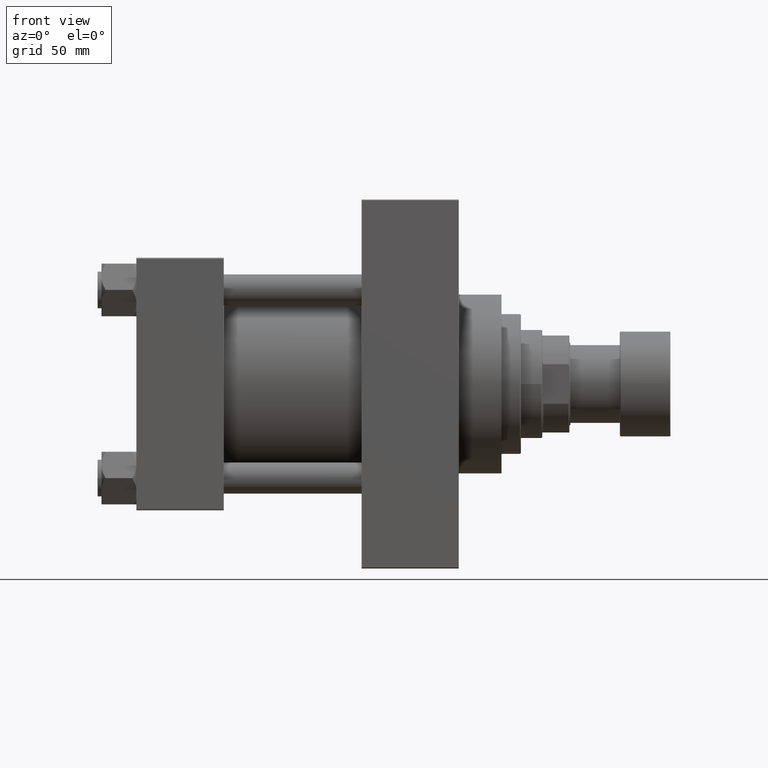
[diagram: clean part render]
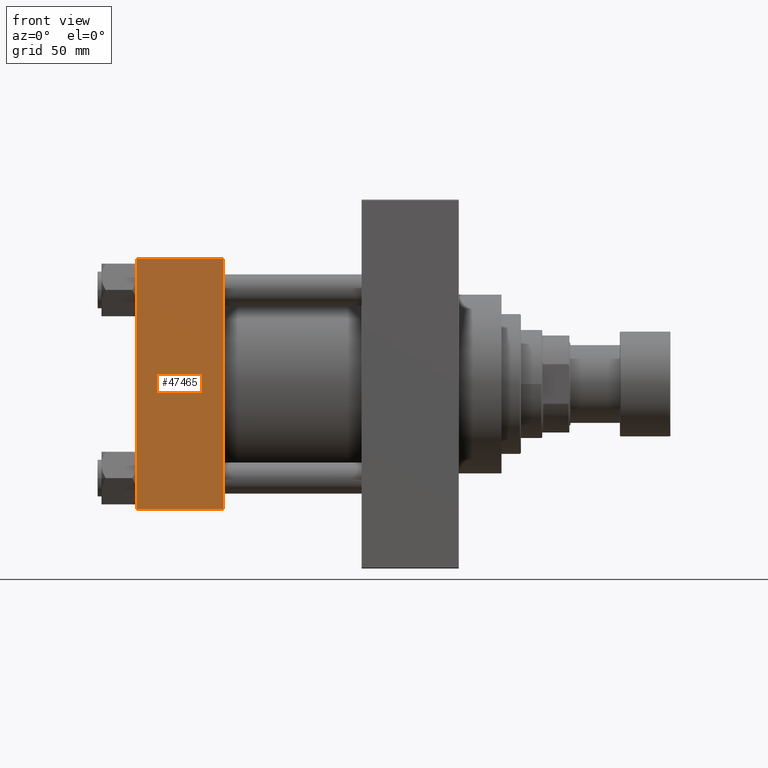
[diagram: same view with one face highlighted and labeled with its STEP entity id]
A machine part, front view. The second image highlights one B-rep face of the part: STEP entity #47465.
In plain terms, the highlighted planar face has unit normal (0, 1, 0).
Its self-contained STEP definition (entity closure, byte-faithful):
#1979 = EDGE_CURVE ( 'NONE', #15311, #25437, #34301, .T. ) ;
#5972 = VERTEX_POINT ( 'NONE', #15724 ) ;
#6564 = DIRECTION ( 'NONE',  ( -1.000000000000000000, 0.000000000000000000, 0.000000000000000000 ) ) ;
#7056 = DIRECTION ( 'NONE',  ( 1.000000000000000000, 0.000000000000000000, 0.000000000000000000 ) ) ;
#7697 = DIRECTION ( 'NONE',  ( 0.000000000000000000, 0.000000000000000000, -1.000000000000000000 ) ) ;
#7709 = CARTESIAN_POINT ( 'NONE',  ( 0.000000000000000000, -65.00000000000000000, 64.50000000000000000 ) ) ;
#7940 = DIRECTION ( 'NONE',  ( -0.000000000000000000, 1.000000000000000000, 0.000000000000000000 ) ) ;
#8434 = CARTESIAN_POINT ( 'NONE',  ( 45.00000000000000000, -65.00000000000000000, 65.00000000000000000 ) ) ;
#8825 = VECTOR ( 'NONE', #6564, 1000.000000000000000 ) ;
#9496 = ORIENTED_EDGE ( 'NONE', *, *, #34853, .F. ) ;
#13543 = VERTEX_POINT ( 'NONE', #42038 ) ;
#14670 = LINE ( 'NONE', #26394, #36532 ) ;
#14983 = DIRECTION ( 'NONE',  ( 0.000000000000000000, 0.000000000000000000, -1.000000000000000000 ) ) ;
#15311 = VERTEX_POINT ( 'NONE', #40466 ) ;
#15724 = CARTESIAN_POINT ( 'NONE',  ( 45.00000000000000000, -65.00000000000000000, -64.49999999999991473 ) ) ;
#16053 = LINE ( 'NONE', #8434, #42961 ) ;
#18350 = FACE_OUTER_BOUND ( 'NONE', #27128, .T. ) ;
#18610 = CARTESIAN_POINT ( 'NONE',  ( 45.00000000000000000, -65.00000000000000000, 65.00000000000000000 ) ) ;
#18751 = CARTESIAN_POINT ( 'NONE',  ( 45.00000000000000000, -65.00000000000000000, 64.50000000000000000 ) ) ;
#25437 = VERTEX_POINT ( 'NONE', #7709 ) ;
#26394 = CARTESIAN_POINT ( 'NONE',  ( 45.00000000000000000, -65.00000000000000000, -64.49999999999991473 ) ) ;
#26966 = LINE ( 'NONE', #38660, #50376 ) ;
#27128 = EDGE_LOOP ( 'NONE', ( #39581, #39459, #9496, #32031 ) ) ;
#32031 = ORIENTED_EDGE ( 'NONE', *, *, #1979, .T. ) ;
#34164 = PLANE ( 'NONE',  #45056 ) ;
#34301 = LINE ( 'NONE', #18751, #8825 ) ;
#34853 = EDGE_CURVE ( 'NONE', #15311, #5972, #16053, .T. ) ;
#36396 = EDGE_CURVE ( 'NONE', #25437, #13543, #26966, .T. ) ;
#36532 = VECTOR ( 'NONE', #7056, 1000.000000000000000 ) ;
#36738 = EDGE_CURVE ( 'NONE', #13543, #5972, #14670, .T. ) ;
#38660 = CARTESIAN_POINT ( 'NONE',  ( 0.000000000000000000, -65.00000000000000000, 65.00000000000000000 ) ) ;
#39459 = ORIENTED_EDGE ( 'NONE', *, *, #36738, .T. ) ;
#39581 = ORIENTED_EDGE ( 'NONE', *, *, #36396, .T. ) ;
#40466 = CARTESIAN_POINT ( 'NONE',  ( 45.00000000000000000, -65.00000000000000000, 64.50000000000000000 ) ) ;
#42038 = CARTESIAN_POINT ( 'NONE',  ( 0.000000000000000000, -65.00000000000000000, -64.49999999999991473 ) ) ;
#42961 = VECTOR ( 'NONE', #7697, 1000.000000000000000 ) ;
#45056 = AXIS2_PLACEMENT_3D ( 'NONE', #18610, #7940, #49921 ) ;
#47465 = ADVANCED_FACE ( 'NONE', ( #18350 ), #34164, .F. ) ;
#49921 = DIRECTION ( 'NONE',  ( 0.000000000000000000, -0.000000000000000000, 1.000000000000000000 ) ) ;
#50376 = VECTOR ( 'NONE', #14983, 1000.000000000000000 ) ;